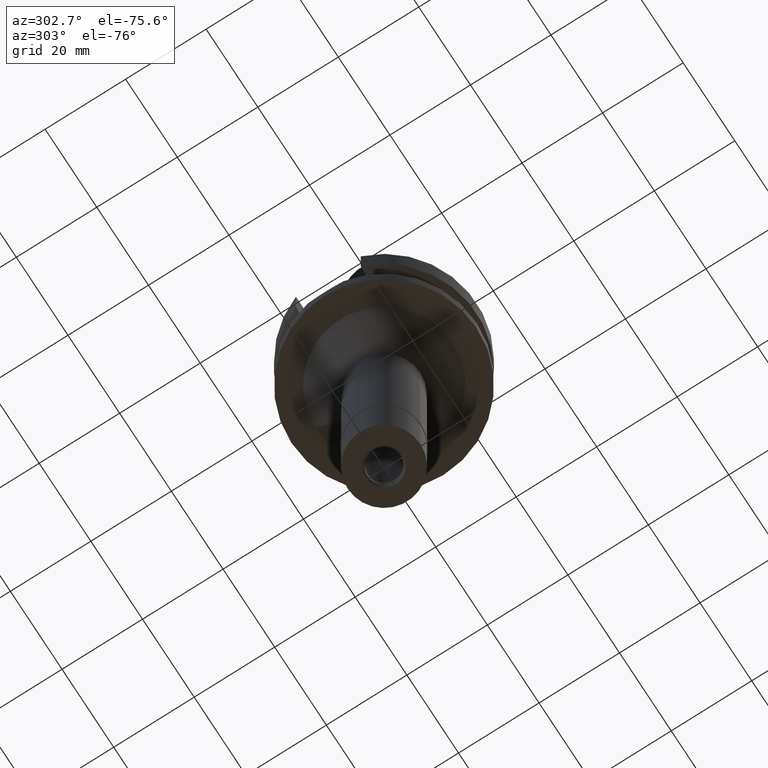
[diagram: clean part render]
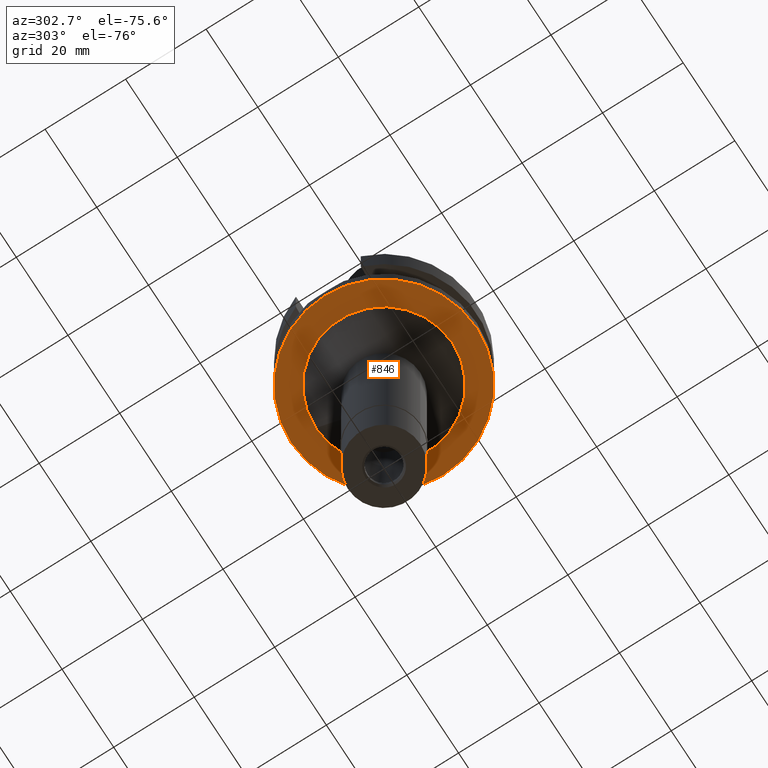
[diagram: same view with one face highlighted and labeled with its STEP entity id]
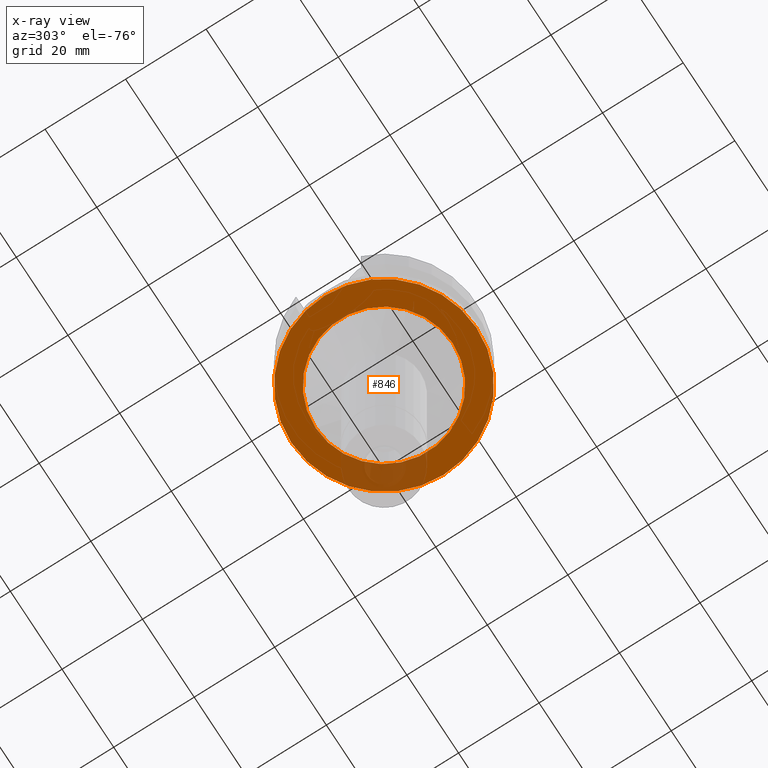
[diagram: x-ray of the same camera — body ghosted, the highlighted face saturated]
A machine part, auxiliary view. The second image highlights one B-rep face of the part: STEP entity #846.
The next image is the same camera in x-ray: the body ghosted, the highlighted face saturated — about 15% of this face is hidden behind the body in this view.
In plain terms, the highlighted planar face has unit normal (0, 0, -1).
Its self-contained STEP definition (entity closure, byte-faithful):
#96 = AXIS2_PLACEMENT_3D ( 'NONE', #2380, #603, #434 ) ;
#304 = CARTESIAN_POINT ( 'NONE',  ( 0.0000000000000000000, 0.0000000000000000000, -22.00000000000000000 ) ) ;
#327 = VERTEX_POINT ( 'NONE', #2840 ) ;
#332 = EDGE_CURVE ( 'NONE', #2217, #1583, #1422, .T. ) ;
#398 = DIRECTION ( 'NONE',  ( 0.0000000000000000000, 1.000000000000000000, 0.0000000000000000000 ) ) ;
#427 = DIRECTION ( 'NONE',  ( 0.0000000000000000000, 0.0000000000000000000, -1.000000000000000000 ) ) ;
#434 = DIRECTION ( 'NONE',  ( 0.0000000000000000000, -1.000000000000000000, 0.0000000000000000000 ) ) ;
#511 = AXIS2_PLACEMENT_3D ( 'NONE', #1525, #1962, #2219 ) ;
#588 = FACE_BOUND ( 'NONE', #1294, .T. ) ;
#599 = ORIENTED_EDGE ( 'NONE', *, *, #2209, .F. ) ;
#603 = DIRECTION ( 'NONE',  ( 0.0000000000000000000, 0.0000000000000000000, -1.000000000000000000 ) ) ;
#687 = ORIENTED_EDGE ( 'NONE', *, *, #332, .F. ) ;
#693 = DIRECTION ( 'NONE',  ( 0.0000000000000000000, -1.000000000000000000, 0.0000000000000000000 ) ) ;
#805 = CARTESIAN_POINT ( 'NONE',  ( 0.0000000000000000000, 1.899304720797999717E-14, -22.00000000000000000 ) ) ;
#846 = ADVANCED_FACE ( 'NONE', ( #880, #588 ), #1504, .T. ) ;
#880 = FACE_OUTER_BOUND ( 'NONE', #2195, .T. ) ;
#891 = VERTEX_POINT ( 'NONE', #2757 ) ;
#921 = AXIS2_PLACEMENT_3D ( 'NONE', #805, #2412, #1694 ) ;
#1047 = EDGE_CURVE ( 'NONE', #327, #891, #2359, .T. ) ;
#1294 = EDGE_LOOP ( 'NONE', ( #599, #2530 ) ) ;
#1321 = CIRCLE ( 'NONE', #921, 23.00179173279000011 ) ;
#1422 = CIRCLE ( 'NONE', #511, 23.00179173279000011 ) ;
#1504 = PLANE ( 'NONE',  #96 ) ;
#1522 = CARTESIAN_POINT ( 'NONE',  ( 0.0000000000000000000, -23.00179173279000011, -22.00000000000000000 ) ) ;
#1525 = CARTESIAN_POINT ( 'NONE',  ( 0.0000000000000000000, 1.899304720797999717E-14, -22.00000000000000000 ) ) ;
#1583 = VERTEX_POINT ( 'NONE', #2100 ) ;
#1644 = ORIENTED_EDGE ( 'NONE', *, *, #1857, .F. ) ;
#1694 = DIRECTION ( 'NONE',  ( 0.0000000000000000000, 1.000000000000000000, 0.0000000000000000000 ) ) ;
#1857 = EDGE_CURVE ( 'NONE', #1583, #2217, #1321, .T. ) ;
#1866 = CIRCLE ( 'NONE', #2289, 17.00179173279000011 ) ;
#1962 = DIRECTION ( 'NONE',  ( 0.0000000000000000000, 0.0000000000000000000, 1.000000000000000000 ) ) ;
#2100 = CARTESIAN_POINT ( 'NONE',  ( 0.0000000000000000000, 23.00179173279000011, -22.00000000000000000 ) ) ;
#2155 = AXIS2_PLACEMENT_3D ( 'NONE', #304, #2679, #693 ) ;
#2158 = CARTESIAN_POINT ( 'NONE',  ( 0.0000000000000000000, 0.0000000000000000000, -22.00000000000000000 ) ) ;
#2195 = EDGE_LOOP ( 'NONE', ( #1644, #687 ) ) ;
#2209 = EDGE_CURVE ( 'NONE', #891, #327, #1866, .T. ) ;
#2217 = VERTEX_POINT ( 'NONE', #1522 ) ;
#2219 = DIRECTION ( 'NONE',  ( 0.0000000000000000000, -1.000000000000000000, 0.0000000000000000000 ) ) ;
#2289 = AXIS2_PLACEMENT_3D ( 'NONE', #2158, #427, #398 ) ;
#2359 = CIRCLE ( 'NONE', #2155, 17.00179173279000011 ) ;
#2380 = CARTESIAN_POINT ( 'NONE',  ( 0.0000000000000000000, 0.0000000000000000000, -22.00000000000000000 ) ) ;
#2412 = DIRECTION ( 'NONE',  ( 0.0000000000000000000, 0.0000000000000000000, 1.000000000000000000 ) ) ;
#2530 = ORIENTED_EDGE ( 'NONE', *, *, #1047, .F. ) ;
#2679 = DIRECTION ( 'NONE',  ( 0.0000000000000000000, 0.0000000000000000000, -1.000000000000000000 ) ) ;
#2757 = CARTESIAN_POINT ( 'NONE',  ( 0.0000000000000000000, 17.00179173279000011, -22.00000000000000000 ) ) ;
#2840 = CARTESIAN_POINT ( 'NONE',  ( 0.0000000000000000000, -17.00179173279000011, -22.00000000000000000 ) ) ;